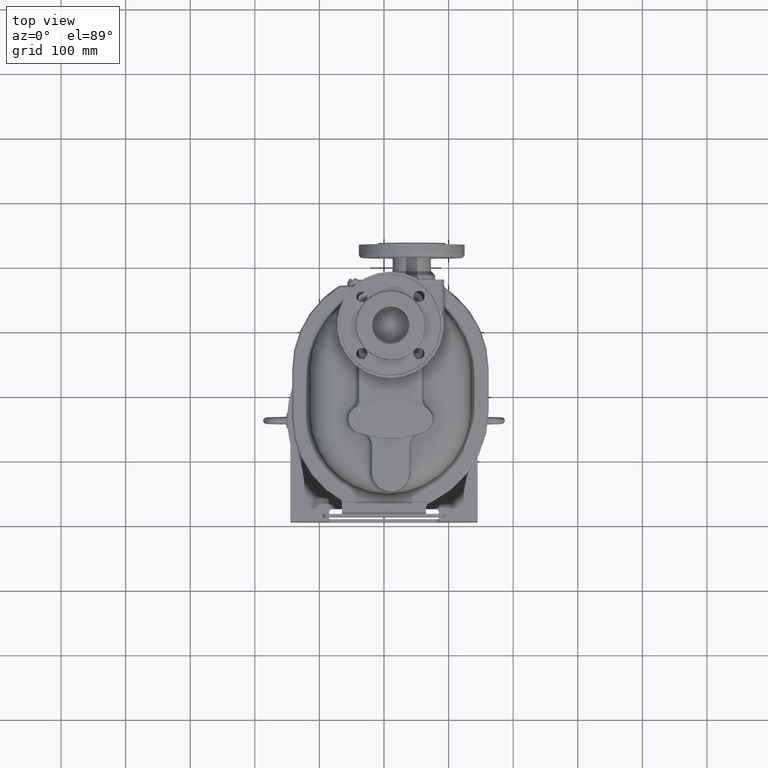
[diagram: clean part render]
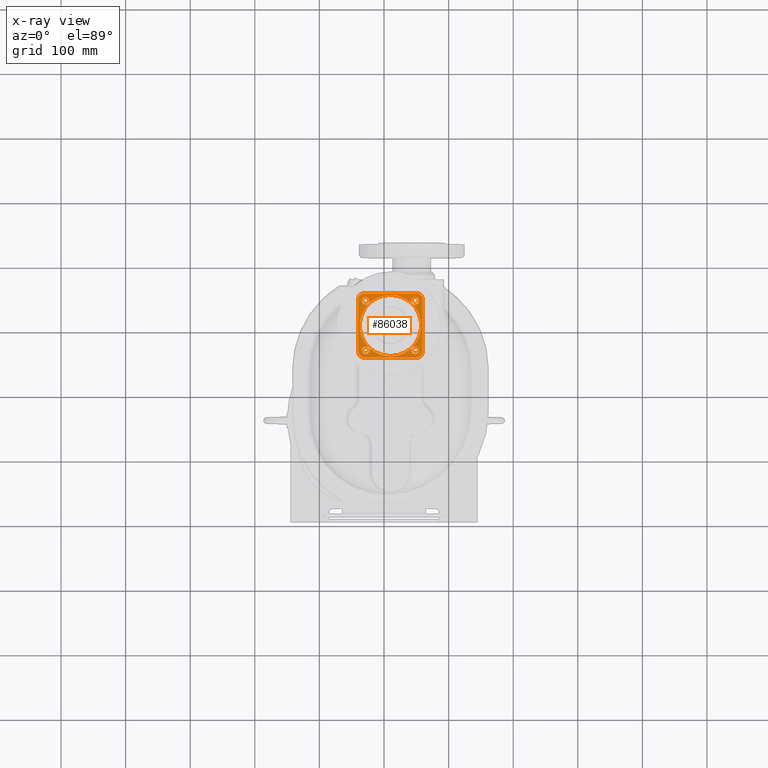
[diagram: x-ray — body ghosted, one internal face saturated and labeled with its STEP entity id]
A machine part, top view, then the same camera in x-ray: the body is ghosted and one INTERNAL B-rep face — a face not visible from any outside direction — is saturated and labeled: STEP entity #86038.
In plain terms, the highlighted planar face has unit normal (0, 0, 1).
Its self-contained STEP definition (entity closure, byte-faithful):
#27248=CARTESIAN_POINT('',(1.E1,2.95E2,1.055E2));
#27249=DIRECTION('',(0.E0,0.E0,1.E0));
#27250=DIRECTION('',(0.E0,1.E0,0.E0));
#27251=AXIS2_PLACEMENT_3D('',#27248,#27249,#27250);
#27262=CARTESIAN_POINT('',(1.E1,2.95E2,1.055E2));
#27263=DIRECTION('',(0.E0,0.E0,-1.E0));
#27264=DIRECTION('',(0.E0,1.E0,0.E0));
#27265=AXIS2_PLACEMENT_3D('',#27262,#27263,#27264);
#27271=DIRECTION('',(0.E0,-1.E0,0.E0));
#27272=VECTOR('',#27271,8.E1);
#27273=CARTESIAN_POINT('',(-4.E1,3.35E2,1.055E2));
#27274=LINE('',#27273,#27272);
#27287=CARTESIAN_POINT('',(-3.E1,3.35E2,1.055E2));
#27288=DIRECTION('',(0.E0,0.E0,-1.E0));
#27289=DIRECTION('',(-1.E0,0.E0,0.E0));
#27290=AXIS2_PLACEMENT_3D('',#27287,#27288,#27289);
#27297=DIRECTION('',(-1.E0,0.E0,0.E0));
#27298=VECTOR('',#27297,8.E1);
#27299=CARTESIAN_POINT('',(5.E1,3.45E2,1.055E2));
#27300=LINE('',#27299,#27298);
#27313=CARTESIAN_POINT('',(5.E1,3.35E2,1.055E2));
#27314=DIRECTION('',(0.E0,0.E0,-1.E0));
#27315=DIRECTION('',(0.E0,1.E0,0.E0));
#27316=AXIS2_PLACEMENT_3D('',#27313,#27314,#27315);
#27323=DIRECTION('',(0.E0,1.E0,0.E0));
#27324=VECTOR('',#27323,8.E1);
#27325=CARTESIAN_POINT('',(6.E1,2.55E2,1.055E2));
#27326=LINE('',#27325,#27324);
#27339=CARTESIAN_POINT('',(5.E1,2.55E2,1.055E2));
#27340=DIRECTION('',(0.E0,0.E0,-1.E0));
#27341=DIRECTION('',(1.E0,0.E0,0.E0));
#27342=AXIS2_PLACEMENT_3D('',#27339,#27340,#27341);
#27349=DIRECTION('',(1.E0,0.E0,0.E0));
#27350=VECTOR('',#27349,8.E1);
#27351=CARTESIAN_POINT('',(-3.E1,2.45E2,1.055E2));
#27352=LINE('',#27351,#27350);
#27365=CARTESIAN_POINT('',(-3.E1,2.55E2,1.055E2));
#27366=DIRECTION('',(0.E0,0.E0,-1.E0));
#27367=DIRECTION('',(0.E0,-1.E0,0.E0));
#27368=AXIS2_PLACEMENT_3D('',#27365,#27366,#27367);
#28055=CARTESIAN_POINT('',(4.818376618407E1,2.568162338159E2,1.055E2));
#28056=DIRECTION('',(0.E0,0.E0,-1.E0));
#28057=DIRECTION('',(1.E0,0.E0,0.E0));
#28058=AXIS2_PLACEMENT_3D('',#28055,#28056,#28057);
#28064=CARTESIAN_POINT('',(4.818376618407E1,2.568162338159E2,1.055E2));
#28065=DIRECTION('',(0.E0,0.E0,-1.E0));
#28066=DIRECTION('',(-1.E0,0.E0,0.E0));
#28067=AXIS2_PLACEMENT_3D('',#28064,#28065,#28066);
#28073=CARTESIAN_POINT('',(-2.818376618407E1,2.568162338159E2,1.055E2));
#28074=DIRECTION('',(0.E0,0.E0,-1.E0));
#28075=DIRECTION('',(0.E0,-1.E0,0.E0));
#28076=AXIS2_PLACEMENT_3D('',#28073,#28074,#28075);
#28082=CARTESIAN_POINT('',(-2.818376618407E1,2.568162338159E2,1.055E2));
#28083=DIRECTION('',(0.E0,0.E0,-1.E0));
#28084=DIRECTION('',(0.E0,1.E0,0.E0));
#28085=AXIS2_PLACEMENT_3D('',#28082,#28083,#28084);
#28091=CARTESIAN_POINT('',(-2.818376618407E1,3.331837661841E2,1.055E2));
#28092=DIRECTION('',(0.E0,0.E0,-1.E0));
#28093=DIRECTION('',(-1.E0,0.E0,0.E0));
#28094=AXIS2_PLACEMENT_3D('',#28091,#28092,#28093);
#28100=CARTESIAN_POINT('',(-2.818376618407E1,3.331837661841E2,1.055E2));
#28101=DIRECTION('',(0.E0,0.E0,-1.E0));
#28102=DIRECTION('',(1.E0,0.E0,0.E0));
#28103=AXIS2_PLACEMENT_3D('',#28100,#28101,#28102);
#28109=CARTESIAN_POINT('',(4.818376618407E1,3.331837661841E2,1.055E2));
#28110=DIRECTION('',(0.E0,0.E0,-1.E0));
#28111=DIRECTION('',(0.E0,1.E0,0.E0));
#28112=AXIS2_PLACEMENT_3D('',#28109,#28110,#28111);
#28118=CARTESIAN_POINT('',(4.818376618407E1,3.331837661841E2,1.055E2));
#28119=DIRECTION('',(0.E0,0.E0,-1.E0));
#28120=DIRECTION('',(0.E0,-1.E0,0.E0));
#28121=AXIS2_PLACEMENT_3D('',#28118,#28119,#28120);
#42709=CARTESIAN_POINT('',(1.E1,3.425E2,1.055E2));
#42710=CARTESIAN_POINT('',(1.E1,2.475E2,1.055E2));
#42711=VERTEX_POINT('',#42709);
#42712=VERTEX_POINT('',#42710);
#42717=CARTESIAN_POINT('',(5.393376618407E1,2.568162338159E2,1.055E2));
#42718=CARTESIAN_POINT('',(4.243376618407E1,2.568162338159E2,1.055E2));
#42719=VERTEX_POINT('',#42717);
#42720=VERTEX_POINT('',#42718);
#42721=CARTESIAN_POINT('',(-2.818376618407E1,2.510662338159E2,1.055E2));
#42722=CARTESIAN_POINT('',(-2.818376618407E1,2.625662338159E2,1.055E2));
#42723=VERTEX_POINT('',#42721);
#42724=VERTEX_POINT('',#42722);
#42725=CARTESIAN_POINT('',(-3.393376618407E1,3.331837661841E2,1.055E2));
#42726=CARTESIAN_POINT('',(-2.243376618407E1,3.331837661841E2,1.055E2));
#42727=VERTEX_POINT('',#42725);
#42728=VERTEX_POINT('',#42726);
#42729=CARTESIAN_POINT('',(4.818376618407E1,3.389337661841E2,1.055E2));
#42730=CARTESIAN_POINT('',(4.818376618407E1,3.274337661841E2,1.055E2));
#42731=VERTEX_POINT('',#42729);
#42732=VERTEX_POINT('',#42730);
#42749=CARTESIAN_POINT('',(-4.E1,3.35E2,1.055E2));
#42750=CARTESIAN_POINT('',(-4.E1,2.55E2,1.055E2));
#42751=VERTEX_POINT('',#42749);
#42752=VERTEX_POINT('',#42750);
#42753=CARTESIAN_POINT('',(-3.E1,2.45E2,1.055E2));
#42754=CARTESIAN_POINT('',(5.E1,2.45E2,1.055E2));
#42755=VERTEX_POINT('',#42753);
#42756=VERTEX_POINT('',#42754);
#42757=CARTESIAN_POINT('',(6.E1,2.55E2,1.055E2));
#42758=CARTESIAN_POINT('',(6.E1,3.35E2,1.055E2));
#42759=VERTEX_POINT('',#42757);
#42760=VERTEX_POINT('',#42758);
#42761=CARTESIAN_POINT('',(5.E1,3.45E2,1.055E2));
#42762=CARTESIAN_POINT('',(-3.E1,3.45E2,1.055E2));
#42763=VERTEX_POINT('',#42761);
#42764=VERTEX_POINT('',#42762);
#85987=CARTESIAN_POINT('',(1.E1,2.95E2,1.055E2));
#85988=DIRECTION('',(0.E0,0.E0,1.E0));
#85989=DIRECTION('',(0.E0,1.E0,0.E0));
#85990=AXIS2_PLACEMENT_3D('',#85987,#85988,#85989);
#85991=PLANE('',#85990);
#85993=ORIENTED_EDGE('',*,*,#85992,.T.);
#85995=ORIENTED_EDGE('',*,*,#85994,.F.);
#85997=ORIENTED_EDGE('',*,*,#85996,.T.);
#85999=ORIENTED_EDGE('',*,*,#85998,.F.);
#86001=ORIENTED_EDGE('',*,*,#86000,.T.);
#86003=ORIENTED_EDGE('',*,*,#86002,.F.);
#86005=ORIENTED_EDGE('',*,*,#86004,.T.);
#86007=ORIENTED_EDGE('',*,*,#86006,.F.);
#86008=EDGE_LOOP('',(#85993,#85995,#85997,#85999,#86001,#86003,#86005,#86007));
#86009=FACE_OUTER_BOUND('',#86008,.F.);
#86010=ORIENTED_EDGE('',*,*,#85981,.T.);
#86011=ORIENTED_EDGE('',*,*,#85967,.F.);
#86012=EDGE_LOOP('',(#86010,#86011));
#86013=FACE_BOUND('',#86012,.F.);
#86015=ORIENTED_EDGE('',*,*,#86014,.T.);
#86017=ORIENTED_EDGE('',*,*,#86016,.T.);
#86018=EDGE_LOOP('',(#86015,#86017));
#86019=FACE_BOUND('',#86018,.F.);
#86021=ORIENTED_EDGE('',*,*,#86020,.T.);
#86023=ORIENTED_EDGE('',*,*,#86022,.T.);
#86024=EDGE_LOOP('',(#86021,#86023));
#86025=FACE_BOUND('',#86024,.F.);
#86027=ORIENTED_EDGE('',*,*,#86026,.T.);
#86029=ORIENTED_EDGE('',*,*,#86028,.T.);
#86030=EDGE_LOOP('',(#86027,#86029));
#86031=FACE_BOUND('',#86030,.F.);
#86033=ORIENTED_EDGE('',*,*,#86032,.T.);
#86035=ORIENTED_EDGE('',*,*,#86034,.T.);
#86036=EDGE_LOOP('',(#86033,#86035));
#86037=FACE_BOUND('',#86036,.F.);
#86038=ADVANCED_FACE('',(#86009,#86013,#86019,#86025,#86031,#86037),#85991,.F.);
#27252=CIRCLE('',#27251,4.75E1);
#27266=CIRCLE('',#27265,4.75E1);
#27291=CIRCLE('',#27290,1.E1);
#27317=CIRCLE('',#27316,1.E1);
#27343=CIRCLE('',#27342,1.E1);
#27369=CIRCLE('',#27368,1.E1);
#28059=CIRCLE('',#28058,5.75E0);
#28068=CIRCLE('',#28067,5.75E0);
#28077=CIRCLE('',#28076,5.75E0);
#28086=CIRCLE('',#28085,5.75E0);
#28095=CIRCLE('',#28094,5.75E0);
#28104=CIRCLE('',#28103,5.75E0);
#28113=CIRCLE('',#28112,5.75E0);
#28122=CIRCLE('',#28121,5.75E0);
#85967=EDGE_CURVE('',#42711,#42712,#27252,.T.);
#85981=EDGE_CURVE('',#42711,#42712,#27266,.T.);
#85992=EDGE_CURVE('',#42751,#42752,#27274,.T.);
#85994=EDGE_CURVE('',#42755,#42752,#27369,.T.);
#85996=EDGE_CURVE('',#42755,#42756,#27352,.T.);
#85998=EDGE_CURVE('',#42759,#42756,#27343,.T.);
#86000=EDGE_CURVE('',#42759,#42760,#27326,.T.);
#86002=EDGE_CURVE('',#42763,#42760,#27317,.T.);
#86004=EDGE_CURVE('',#42763,#42764,#27300,.T.);
#86006=EDGE_CURVE('',#42751,#42764,#27291,.T.);
#86014=EDGE_CURVE('',#42719,#42720,#28059,.T.);
#86016=EDGE_CURVE('',#42720,#42719,#28068,.T.);
#86020=EDGE_CURVE('',#42723,#42724,#28077,.T.);
#86022=EDGE_CURVE('',#42724,#42723,#28086,.T.);
#86026=EDGE_CURVE('',#42727,#42728,#28095,.T.);
#86028=EDGE_CURVE('',#42728,#42727,#28104,.T.);
#86032=EDGE_CURVE('',#42731,#42732,#28113,.T.);
#86034=EDGE_CURVE('',#42732,#42731,#28122,.T.);